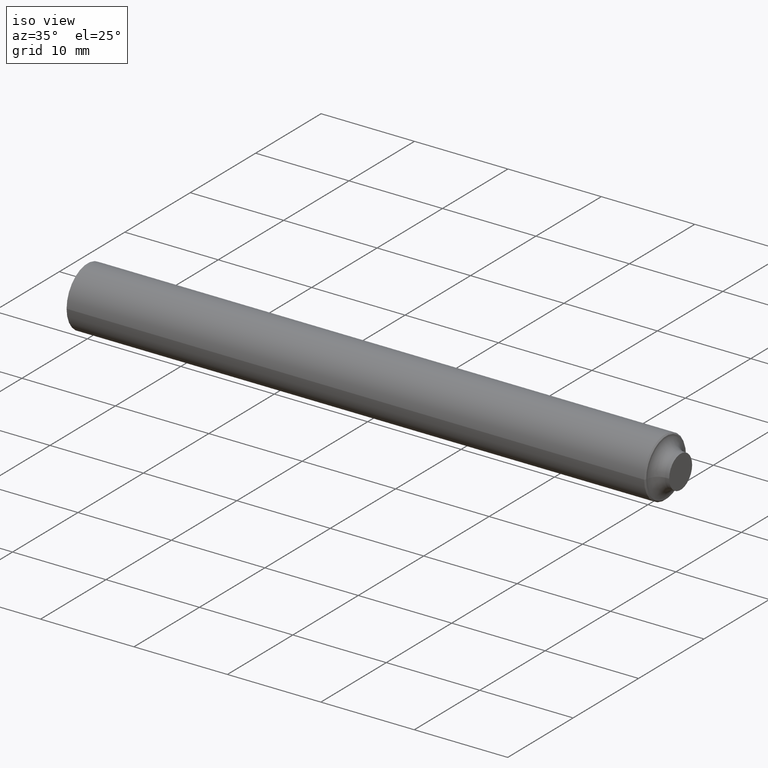
[diagram: clean part render]
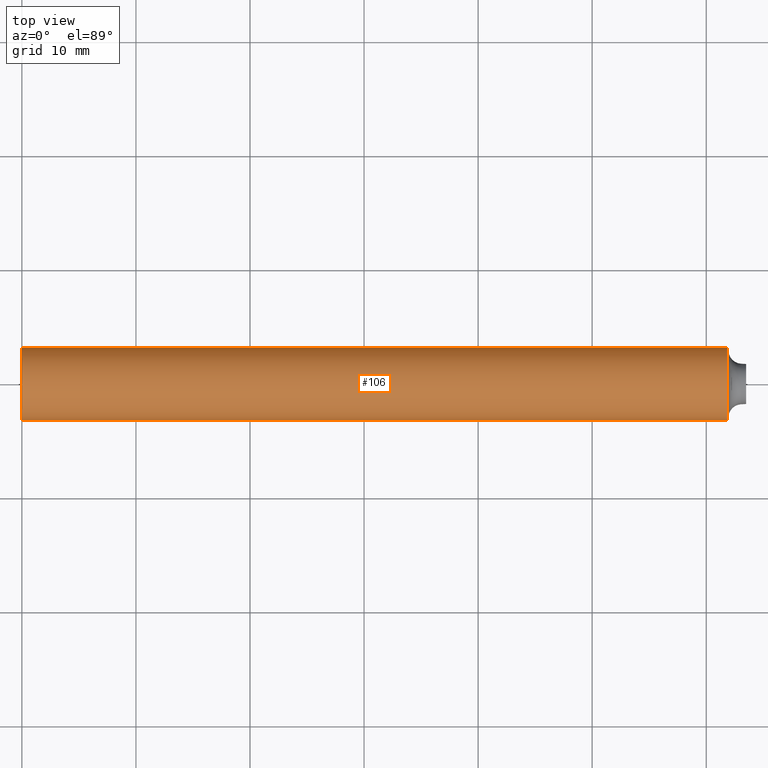
[diagram: tour spotlight — one face highlighted and labeled with its STEP entity id]
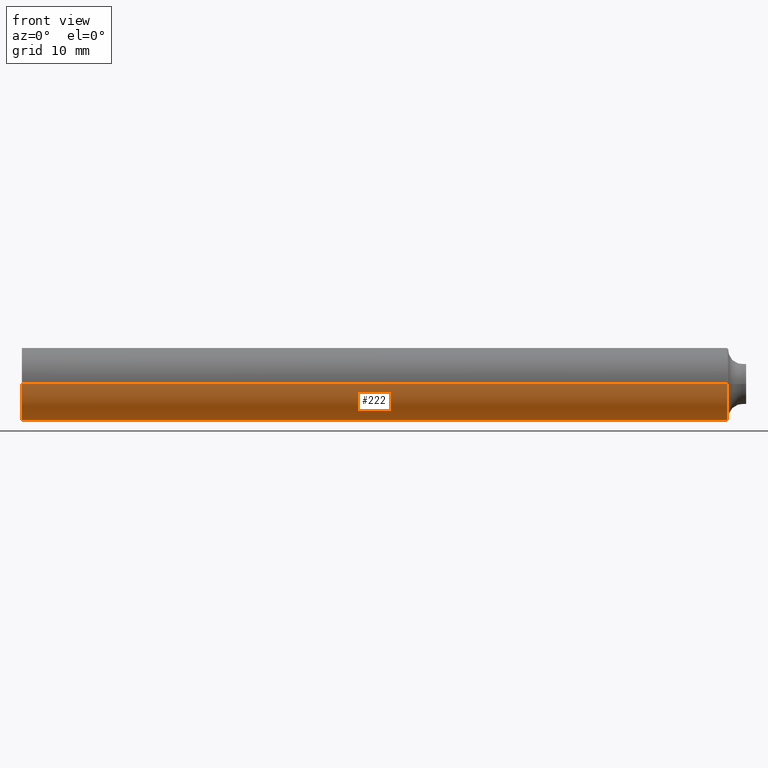
[diagram: tour spotlight — one face highlighted and labeled with its STEP entity id]
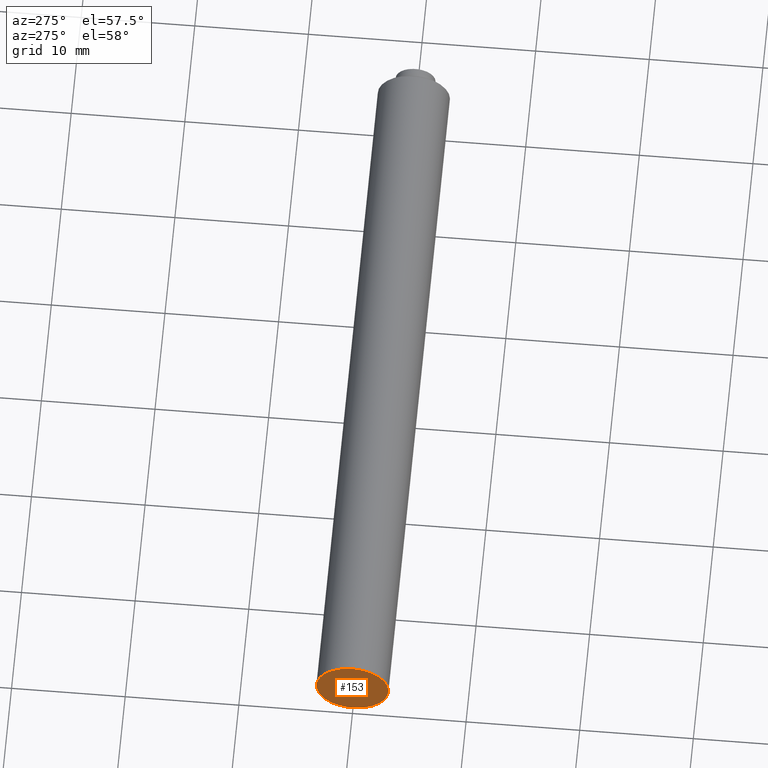
[diagram: tour spotlight — one face highlighted and labeled with its STEP entity id]
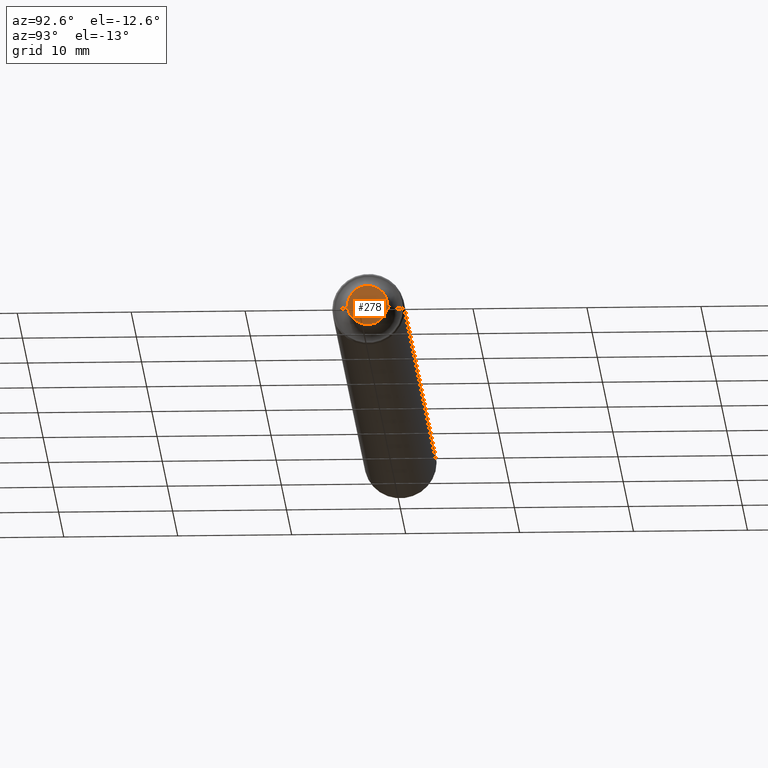
[diagram: tour spotlight — one face highlighted and labeled with its STEP entity id]
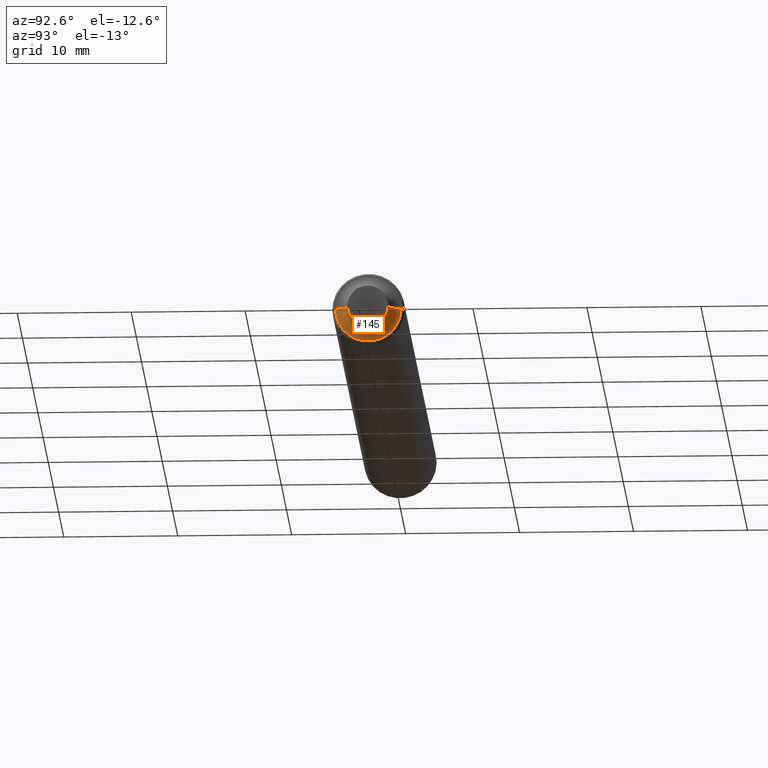
[diagram: tour spotlight — one face highlighted and labeled with its STEP entity id]
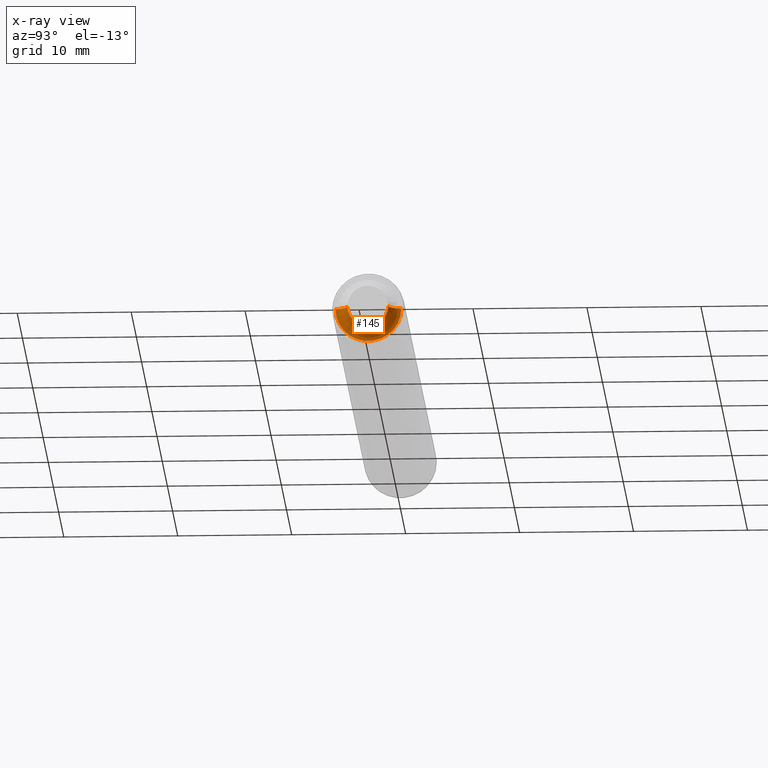
[diagram: x-ray of the same camera — body ghosted, this tour face saturated]
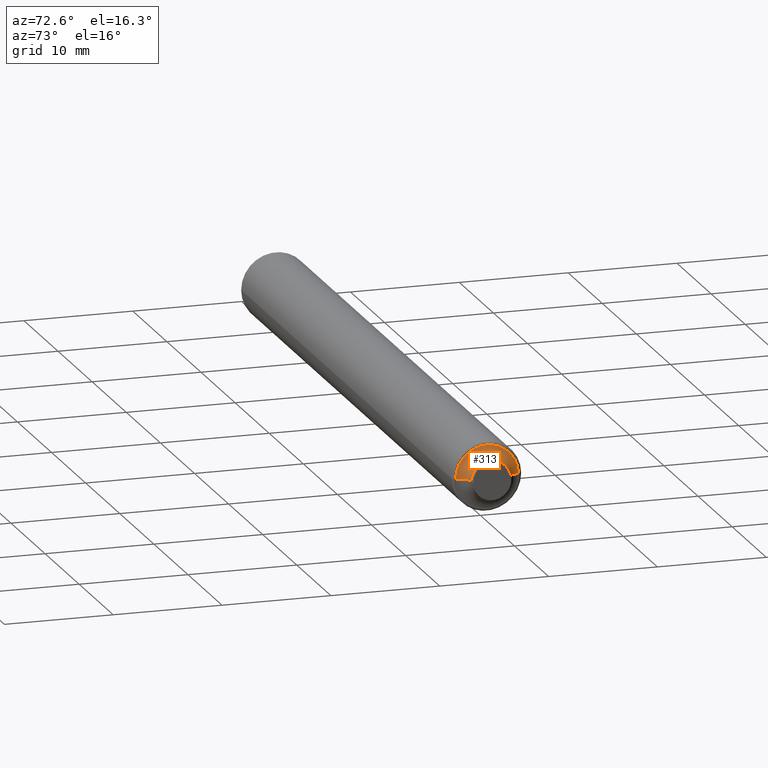
[diagram: tour spotlight — one face highlighted and labeled with its STEP entity id]
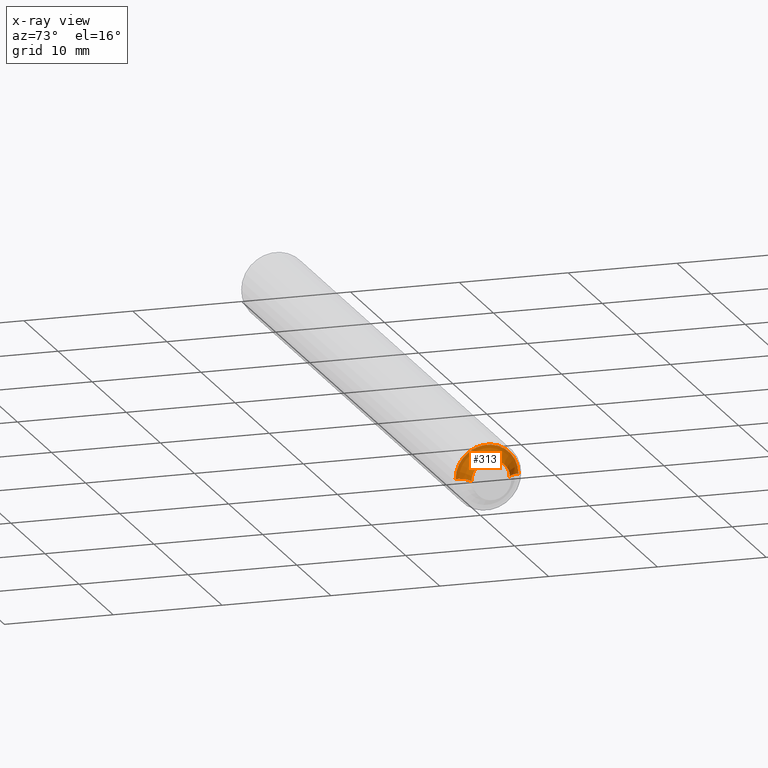
[diagram: x-ray of the same camera — body ghosted, this tour face saturated]
A machine part: a face-by-face anatomy tour. The part has 12 B-rep faces; the first image is the clean iso view, then the 6 largest visible faces are spotlighted one at a time (largest first), each with its STEP entity span.

Face 1 — top view, entity #106. In plain terms, the highlighted cylindrical surface (edge-blend (fillet) strip) has radius 3.175 mm, axis along (-1, -0, -0).
Definition (entity closure, byte-faithful):
#3 = EDGE_CURVE ( 'NONE', #325, #163, #84, .T. ) ;
#4 = DIRECTION ( 'NONE',  ( -1.000000000000000000, -4.887607864318309822E-21, -0.000000000000000000 ) ) ;
#19 = CARTESIAN_POINT ( 'NONE',  ( 2.433660895705829663, -0.1250000000000000000, 0.000000000000000000 ) ) ;
#23 = FACE_OUTER_BOUND ( 'NONE', #223, .T. ) ;
#32 = AXIS2_PLACEMENT_3D ( 'NONE', #45, #146, #250 ) ;
#45 = CARTESIAN_POINT ( 'NONE',  ( 2.433660895705829663, 1.189478013293575589E-20, 0.000000000000000000 ) ) ;
#57 = DIRECTION ( 'NONE',  ( 4.887607864318309822E-21, -1.000000000000000000, 0.000000000000000000 ) ) ;
#84 = CIRCLE ( 'NONE', #32, 0.1250000000000000000 ) ;
#90 = EDGE_CURVE ( 'NONE', #328, #177, #292, .T. ) ;
#105 = DIRECTION ( 'NONE',  ( 4.887607864318309822E-21, -1.000000000000000000, 0.000000000000000000 ) ) ;
#106 = ADVANCED_FACE ( 'NONE', ( #23 ), #134, .T. ) ;
#107 = CARTESIAN_POINT ( 'NONE',  ( 0.000000000000000000, 0.000000000000000000, 0.000000000000000000 ) ) ;
#116 = CARTESIAN_POINT ( 'NONE',  ( 6.109509830397887278E-22, -0.1250000000000000000, 0.000000000000000000 ) ) ;
#120 = CARTESIAN_POINT ( 'NONE',  ( -6.109509830397887278E-22, 0.1250000000000000000, 1.530808498934191509E-17 ) ) ;
#134 = CYLINDRICAL_SURFACE ( 'NONE', #214, 0.1250000000000000000 ) ;
#138 = CARTESIAN_POINT ( 'NONE',  ( 0.000000000000000000, 0.1250000000000000000, 1.530808498934191509E-17 ) ) ;
#142 = LINE ( 'NONE', #120, #160 ) ;
#144 = LINE ( 'NONE', #116, #182 ) ;
#146 = DIRECTION ( 'NONE',  ( -1.000000000000000000, -4.887607864318309822E-21, -0.000000000000000000 ) ) ;
#147 = ORIENTED_EDGE ( 'NONE', *, *, #90, .F. ) ;
#160 = VECTOR ( 'NONE', #4, 39.37007874015748143 ) ;
#163 = VERTEX_POINT ( 'NONE', #165 ) ;
#164 = EDGE_CURVE ( 'NONE', #325, #328, #144, .T. ) ;
#165 = CARTESIAN_POINT ( 'NONE',  ( 2.433660895705829663, 0.1250000000000000000, 1.530808498934191509E-17 ) ) ;
#167 = DIRECTION ( 'NONE',  ( -1.000000000000000000, -4.887607864318309822E-21, -0.000000000000000000 ) ) ;
#177 = VERTEX_POINT ( 'NONE', #138 ) ;
#182 = VECTOR ( 'NONE', #167, 39.37007874015748143 ) ;
#200 = AXIS2_PLACEMENT_3D ( 'NONE', #284, #234, #57 ) ;
#214 = AXIS2_PLACEMENT_3D ( 'NONE', #107, #329, #105 ) ;
#219 = ORIENTED_EDGE ( 'NONE', *, *, #235, .T. ) ;
#223 = EDGE_LOOP ( 'NONE', ( #301, #219, #147, #293 ) ) ;
#234 = DIRECTION ( 'NONE',  ( -1.000000000000000000, -4.887607864318309822E-21, -0.000000000000000000 ) ) ;
#235 = EDGE_CURVE ( 'NONE', #163, #177, #142, .T. ) ;
#250 = DIRECTION ( 'NONE',  ( 0.000000000000000000, -1.000000000000000000, 0.000000000000000000 ) ) ;
#270 = CARTESIAN_POINT ( 'NONE',  ( 1.221901966079577456E-21, -0.1250000000000000000, 0.000000000000000000 ) ) ;
#284 = CARTESIAN_POINT ( 'NONE',  ( 6.109509830397887278E-22, 2.986088829418273701E-42, 0.000000000000000000 ) ) ;
#292 = CIRCLE ( 'NONE', #200, 0.1250000000000000000 ) ;
#293 = ORIENTED_EDGE ( 'NONE', *, *, #164, .F. ) ;
#301 = ORIENTED_EDGE ( 'NONE', *, *, #3, .T. ) ;
#325 = VERTEX_POINT ( 'NONE', #19 ) ;
#328 = VERTEX_POINT ( 'NONE', #270 ) ;
#329 = DIRECTION ( 'NONE',  ( -1.000000000000000000, -4.887607864318309822E-21, -0.000000000000000000 ) ) ;

Face 2 — front view, entity #222. In plain terms, the highlighted cylindrical surface (edge-blend (fillet) strip) has radius 3.175 mm, axis along (-1, -0, -0).
Definition (entity closure, byte-faithful):
#2 = DIRECTION ( 'NONE',  ( -1.000000000000000000, -4.887607864318309822E-21, -0.000000000000000000 ) ) ;
#4 = DIRECTION ( 'NONE',  ( -1.000000000000000000, -4.887607864318309822E-21, -0.000000000000000000 ) ) ;
#6 = DIRECTION ( 'NONE',  ( -1.000000000000000000, -4.887607864318309822E-21, -0.000000000000000000 ) ) ;
#19 = CARTESIAN_POINT ( 'NONE',  ( 2.433660895705829663, -0.1250000000000000000, 0.000000000000000000 ) ) ;
#56 = CIRCLE ( 'NONE', #245, 0.1250000000000000000 ) ;
#60 = DIRECTION ( 'NONE',  ( -1.000000000000000000, -4.887607864318309822E-21, -0.000000000000000000 ) ) ;
#63 = EDGE_LOOP ( 'NONE', ( #204, #95, #197, #323 ) ) ;
#83 = DIRECTION ( 'NONE',  ( 4.887607864318309822E-21, -1.000000000000000000, 0.000000000000000000 ) ) ;
#85 = DIRECTION ( 'NONE',  ( 4.887607864318309822E-21, -1.000000000000000000, 0.000000000000000000 ) ) ;
#95 = ORIENTED_EDGE ( 'NONE', *, *, #295, .T. ) ;
#108 = AXIS2_PLACEMENT_3D ( 'NONE', #137, #2, #162 ) ;
#116 = CARTESIAN_POINT ( 'NONE',  ( 6.109509830397887278E-22, -0.1250000000000000000, 0.000000000000000000 ) ) ;
#120 = CARTESIAN_POINT ( 'NONE',  ( -6.109509830397887278E-22, 0.1250000000000000000, 1.530808498934191509E-17 ) ) ;
#137 = CARTESIAN_POINT ( 'NONE',  ( 2.433660895705829663, 1.189478013293575589E-20, 0.000000000000000000 ) ) ;
#138 = CARTESIAN_POINT ( 'NONE',  ( 0.000000000000000000, 0.1250000000000000000, 1.530808498934191509E-17 ) ) ;
#142 = LINE ( 'NONE', #120, #160 ) ;
#144 = LINE ( 'NONE', #116, #182 ) ;
#160 = VECTOR ( 'NONE', #4, 39.37007874015748143 ) ;
#162 = DIRECTION ( 'NONE',  ( 0.000000000000000000, -1.000000000000000000, 0.000000000000000000 ) ) ;
#163 = VERTEX_POINT ( 'NONE', #165 ) ;
#164 = EDGE_CURVE ( 'NONE', #325, #328, #144, .T. ) ;
#165 = CARTESIAN_POINT ( 'NONE',  ( 2.433660895705829663, 0.1250000000000000000, 1.530808498934191509E-17 ) ) ;
#167 = DIRECTION ( 'NONE',  ( -1.000000000000000000, -4.887607864318309822E-21, -0.000000000000000000 ) ) ;
#177 = VERTEX_POINT ( 'NONE', #138 ) ;
#182 = VECTOR ( 'NONE', #167, 39.37007874015748143 ) ;
#193 = FACE_OUTER_BOUND ( 'NONE', #63, .T. ) ;
#197 = ORIENTED_EDGE ( 'NONE', *, *, #164, .T. ) ;
#201 = CIRCLE ( 'NONE', #108, 0.1250000000000000000 ) ;
#204 = ORIENTED_EDGE ( 'NONE', *, *, #235, .F. ) ;
#212 = CARTESIAN_POINT ( 'NONE',  ( 0.000000000000000000, 0.000000000000000000, 0.000000000000000000 ) ) ;
#222 = ADVANCED_FACE ( 'NONE', ( #193 ), #268, .T. ) ;
#235 = EDGE_CURVE ( 'NONE', #163, #177, #142, .T. ) ;
#237 = CARTESIAN_POINT ( 'NONE',  ( 6.109509830397887278E-22, 2.986088829418273701E-42, 0.000000000000000000 ) ) ;
#242 = EDGE_CURVE ( 'NONE', #177, #328, #56, .T. ) ;
#245 = AXIS2_PLACEMENT_3D ( 'NONE', #237, #6, #83 ) ;
#268 = CYLINDRICAL_SURFACE ( 'NONE', #299, 0.1250000000000000000 ) ;
#270 = CARTESIAN_POINT ( 'NONE',  ( 1.221901966079577456E-21, -0.1250000000000000000, 0.000000000000000000 ) ) ;
#295 = EDGE_CURVE ( 'NONE', #163, #325, #201, .T. ) ;
#299 = AXIS2_PLACEMENT_3D ( 'NONE', #212, #60, #85 ) ;
#323 = ORIENTED_EDGE ( 'NONE', *, *, #242, .F. ) ;
#325 = VERTEX_POINT ( 'NONE', #19 ) ;
#328 = VERTEX_POINT ( 'NONE', #270 ) ;

Face 3 — auxiliary view, entity #153. In plain terms, the highlighted planar face has unit normal (1, 0, 0).
Definition (entity closure, byte-faithful):
#6 = DIRECTION ( 'NONE',  ( -1.000000000000000000, -4.887607864318309822E-21, -0.000000000000000000 ) ) ;
#56 = CIRCLE ( 'NONE', #245, 0.1250000000000000000 ) ;
#57 = DIRECTION ( 'NONE',  ( 4.887607864318309822E-21, -1.000000000000000000, 0.000000000000000000 ) ) ;
#61 = DIRECTION ( 'NONE',  ( 1.000000000000000000, 4.887607864318309822E-21, 0.000000000000000000 ) ) ;
#83 = DIRECTION ( 'NONE',  ( 4.887607864318309822E-21, -1.000000000000000000, 0.000000000000000000 ) ) ;
#90 = EDGE_CURVE ( 'NONE', #328, #177, #292, .T. ) ;
#113 = ORIENTED_EDGE ( 'NONE', *, *, #242, .T. ) ;
#115 = ORIENTED_EDGE ( 'NONE', *, *, #90, .T. ) ;
#138 = CARTESIAN_POINT ( 'NONE',  ( 0.000000000000000000, 0.1250000000000000000, 1.530808498934191509E-17 ) ) ;
#143 = AXIS2_PLACEMENT_3D ( 'NONE', #187, #61, #243 ) ;
#153 = ADVANCED_FACE ( 'NONE', ( #291 ), #318, .F. ) ;
#177 = VERTEX_POINT ( 'NONE', #138 ) ;
#187 = CARTESIAN_POINT ( 'NONE',  ( 3.054754915198943639E-22, 1.493044414709136851E-42, 0.000000000000000000 ) ) ;
#200 = AXIS2_PLACEMENT_3D ( 'NONE', #284, #234, #57 ) ;
#234 = DIRECTION ( 'NONE',  ( -1.000000000000000000, -4.887607864318309822E-21, -0.000000000000000000 ) ) ;
#237 = CARTESIAN_POINT ( 'NONE',  ( 6.109509830397887278E-22, 2.986088829418273701E-42, 0.000000000000000000 ) ) ;
#242 = EDGE_CURVE ( 'NONE', #177, #328, #56, .T. ) ;
#243 = DIRECTION ( 'NONE',  ( -4.887607864318309822E-21, 1.000000000000000000, 0.000000000000000000 ) ) ;
#245 = AXIS2_PLACEMENT_3D ( 'NONE', #237, #6, #83 ) ;
#270 = CARTESIAN_POINT ( 'NONE',  ( 1.221901966079577456E-21, -0.1250000000000000000, 0.000000000000000000 ) ) ;
#284 = CARTESIAN_POINT ( 'NONE',  ( 6.109509830397887278E-22, 2.986088829418273701E-42, 0.000000000000000000 ) ) ;
#289 = EDGE_LOOP ( 'NONE', ( #115, #113 ) ) ;
#291 = FACE_OUTER_BOUND ( 'NONE', #289, .T. ) ;
#292 = CIRCLE ( 'NONE', #200, 0.1250000000000000000 ) ;
#318 = PLANE ( 'NONE',  #143 ) ;
#328 = VERTEX_POINT ( 'NONE', #270 ) ;

Face 4 — auxiliary view, entity #278. In plain terms, the highlighted planar face has unit normal (-1, -0, 0).
Definition (entity closure, byte-faithful):
#20 = CARTESIAN_POINT ( 'NONE',  ( 2.500000000000000000, 1.221901966079577606E-20, 0.000000000000000000 ) ) ;
#22 = EDGE_CURVE ( 'NONE', #324, #172, #259, .T. ) ;
#47 = ORIENTED_EDGE ( 'NONE', *, *, #22, .F. ) ;
#48 = DIRECTION ( 'NONE',  ( 0.000000000000000000, -1.000000000000000000, 0.000000000000000000 ) ) ;
#49 = AXIS2_PLACEMENT_3D ( 'NONE', #180, #183, #136 ) ;
#64 = EDGE_CURVE ( 'NONE', #172, #324, #98, .T. ) ;
#81 = FACE_OUTER_BOUND ( 'NONE', #139, .T. ) ;
#87 = DIRECTION ( 'NONE',  ( 4.887607864318309822E-21, -1.000000000000000000, 0.000000000000000000 ) ) ;
#98 = CIRCLE ( 'NONE', #49, 0.06908441013371593997 ) ;
#101 = AXIS2_PLACEMENT_3D ( 'NONE', #20, #275, #48 ) ;
#102 = CARTESIAN_POINT ( 'NONE',  ( 2.500000000000000000, 0.06908441013371593997, 8.516463884077649517E-18 ) ) ;
#136 = DIRECTION ( 'NONE',  ( 0.000000000000000000, -1.000000000000000000, 0.000000000000000000 ) ) ;
#139 = EDGE_LOOP ( 'NONE', ( #141, #47 ) ) ;
#141 = ORIENTED_EDGE ( 'NONE', *, *, #64, .F. ) ;
#161 = CARTESIAN_POINT ( 'NONE',  ( 2.500000000000000000, 0.06908441013371593997, 0.000000000000000000 ) ) ;
#172 = VERTEX_POINT ( 'NONE', #287 ) ;
#180 = CARTESIAN_POINT ( 'NONE',  ( 2.500000000000000000, 1.221901966079577606E-20, 0.000000000000000000 ) ) ;
#183 = DIRECTION ( 'NONE',  ( -1.000000000000000000, -4.887607864318309822E-21, -0.000000000000000000 ) ) ;
#192 = PLANE ( 'NONE',  #327 ) ;
#259 = CIRCLE ( 'NONE', #101, 0.06908441013371593997 ) ;
#275 = DIRECTION ( 'NONE',  ( -1.000000000000000000, -4.887607864318309822E-21, -0.000000000000000000 ) ) ;
#278 = ADVANCED_FACE ( 'NONE', ( #81 ), #192, .F. ) ;
#287 = CARTESIAN_POINT ( 'NONE',  ( 2.500000000000000000, -0.06908441013371593997, 0.000000000000000000 ) ) ;
#317 = DIRECTION ( 'NONE',  ( -1.000000000000000000, -4.887607864318309822E-21, 0.000000000000000000 ) ) ;
#324 = VERTEX_POINT ( 'NONE', #102 ) ;
#327 = AXIS2_PLACEMENT_3D ( 'NONE', #161, #317, #87 ) ;

Face 5 — auxiliary view, entity #145. An x-ray twin of the same camera follows (body ghosted, this face saturated) — the face is partly hidden behind the body. In plain terms, the highlighted toroidal blend (fillet) surface has major radius 2.9448 mm and minor (blend) radius 1.1684 mm.
Definition (entity closure, byte-faithful):
#5 = DIRECTION ( 'NONE',  ( 0.000000000000000000, -1.000000000000000000, 0.000000000000000000 ) ) ;
#8 = EDGE_CURVE ( 'NONE', #266, #131, #232, .T. ) ;
#25 = CARTESIAN_POINT ( 'NONE',  ( 2.482529504611534765, 0.07000000000000006217, 8.572527594031479661E-18 ) ) ;
#26 = AXIS2_PLACEMENT_3D ( 'NONE', #168, #33, #5 ) ;
#33 = DIRECTION ( 'NONE',  ( -1.000000000000000000, -4.887607864318309822E-21, -0.000000000000000000 ) ) ;
#43 = CARTESIAN_POINT ( 'NONE',  ( 2.484936958598710444, 0.1159369585987104073, 1.419818252507899033E-17 ) ) ;
#73 = VERTEX_POINT ( 'NONE', #25 ) ;
#82 = VERTEX_POINT ( 'NONE', #133 ) ;
#112 = CARTESIAN_POINT ( 'NONE',  ( 2.484936958598710444, 0.000000000000000000, 0.000000000000000000 ) ) ;
#119 = CARTESIAN_POINT ( 'NONE',  ( 2.439000000000000057, 0.1135295046115346596, 1.390335444313005994E-17 ) ) ;
#130 = TOROIDAL_SURFACE ( 'NONE', #173, 0.1159369585987104073, 0.04599999999999998535 ) ;
#131 = VERTEX_POINT ( 'NONE', #207 ) ;
#133 = CARTESIAN_POINT ( 'NONE',  ( 2.482529504611534765, -0.07000000000000006217, 0.000000000000000000 ) ) ;
#135 = CIRCLE ( 'NONE', #26, 0.07000000000000006217 ) ;
#145 = ADVANCED_FACE ( 'NONE', ( #264 ), #130, .F. ) ;
#149 = DIRECTION ( 'NONE',  ( -1.000000000000000000, -4.887607864318309822E-21, -0.000000000000000000 ) ) ;
#159 = AXIS2_PLACEMENT_3D ( 'NONE', #43, #296, #225 ) ;
#168 = CARTESIAN_POINT ( 'NONE',  ( 2.482529504611534765, 1.213363073014157413E-20, 0.000000000000000000 ) ) ;
#173 = AXIS2_PLACEMENT_3D ( 'NONE', #112, #217, #312 ) ;
#179 = EDGE_CURVE ( 'NONE', #73, #82, #135, .T. ) ;
#188 = AXIS2_PLACEMENT_3D ( 'NONE', #199, #149, #255 ) ;
#189 = CIRCLE ( 'NONE', #244, 0.04599999999999999922 ) ;
#199 = CARTESIAN_POINT ( 'NONE',  ( 2.439000000000000057, 1.192087558107235888E-20, 0.000000000000000000 ) ) ;
#207 = CARTESIAN_POINT ( 'NONE',  ( 2.439000000000000057, -0.1135295046115346596, 0.000000000000000000 ) ) ;
#211 = EDGE_LOOP ( 'NONE', ( #271, #274, #252, #224 ) ) ;
#217 = DIRECTION ( 'NONE',  ( -1.000000000000000000, -4.887607864318309822E-21, -0.000000000000000000 ) ) ;
#224 = ORIENTED_EDGE ( 'NONE', *, *, #306, .F. ) ;
#225 = DIRECTION ( 'NONE',  ( 0.000000000000000000, -1.000000000000000000, -1.224646799147352961E-16 ) ) ;
#232 = CIRCLE ( 'NONE', #188, 0.1135295046115351730 ) ;
#244 = AXIS2_PLACEMENT_3D ( 'NONE', #247, #322, #319 ) ;
#247 = CARTESIAN_POINT ( 'NONE',  ( 2.484936958598710444, -0.1159369585987104073, 0.000000000000000000 ) ) ;
#252 = ORIENTED_EDGE ( 'NONE', *, *, #179, .T. ) ;
#255 = DIRECTION ( 'NONE',  ( 0.000000000000000000, -1.000000000000000000, 0.000000000000000000 ) ) ;
#264 = FACE_OUTER_BOUND ( 'NONE', #211, .T. ) ;
#266 = VERTEX_POINT ( 'NONE', #119 ) ;
#271 = ORIENTED_EDGE ( 'NONE', *, *, #8, .F. ) ;
#274 = ORIENTED_EDGE ( 'NONE', *, *, #303, .T. ) ;
#282 = CIRCLE ( 'NONE', #159, 0.04599999999999998535 ) ;
#296 = DIRECTION ( 'NONE',  ( 5.985593326524849363E-37, -1.224646799147353207E-16, 1.000000000000000000 ) ) ;
#303 = EDGE_CURVE ( 'NONE', #266, #73, #282, .T. ) ;
#306 = EDGE_CURVE ( 'NONE', #131, #82, #189, .T. ) ;
#312 = DIRECTION ( 'NONE',  ( 4.887607864318309822E-21, -1.000000000000000000, 0.000000000000000000 ) ) ;
#319 = DIRECTION ( 'NONE',  ( -1.000000000000000000, 0.000000000000000000, 0.000000000000000000 ) ) ;
#322 = DIRECTION ( 'NONE',  ( 0.000000000000000000, 0.000000000000000000, -1.000000000000000000 ) ) ;

Face 6 — auxiliary view, entity #313. An x-ray twin of the same camera follows (body ghosted, this face saturated) — the face is partly hidden behind the body. In plain terms, the highlighted toroidal blend (fillet) surface has major radius 2.9448 mm and minor (blend) radius 1.1684 mm.
Definition (entity closure, byte-faithful):
#10 = DIRECTION ( 'NONE',  ( 0.000000000000000000, -1.000000000000000000, 0.000000000000000000 ) ) ;
#25 = CARTESIAN_POINT ( 'NONE',  ( 2.482529504611534765, 0.07000000000000006217, 8.572527594031479661E-18 ) ) ;
#31 = EDGE_CURVE ( 'NONE', #82, #73, #79, .T. ) ;
#40 = DIRECTION ( 'NONE',  ( -1.000000000000000000, -4.887607864318309822E-21, -0.000000000000000000 ) ) ;
#43 = CARTESIAN_POINT ( 'NONE',  ( 2.484936958598710444, 0.1159369585987104073, 1.419818252507899033E-17 ) ) ;
#66 = FACE_OUTER_BOUND ( 'NONE', #103, .T. ) ;
#73 = VERTEX_POINT ( 'NONE', #25 ) ;
#79 = CIRCLE ( 'NONE', #320, 0.07000000000000006217 ) ;
#82 = VERTEX_POINT ( 'NONE', #133 ) ;
#91 = AXIS2_PLACEMENT_3D ( 'NONE', #97, #40, #10 ) ;
#97 = CARTESIAN_POINT ( 'NONE',  ( 2.439000000000000057, 1.192087558107235888E-20, 0.000000000000000000 ) ) ;
#103 = EDGE_LOOP ( 'NONE', ( #248, #316, #195, #273 ) ) ;
#109 = DIRECTION ( 'NONE',  ( -1.000000000000000000, -4.887607864318309822E-21, -0.000000000000000000 ) ) ;
#119 = CARTESIAN_POINT ( 'NONE',  ( 2.439000000000000057, 0.1135295046115346596, 1.390335444313005994E-17 ) ) ;
#123 = CARTESIAN_POINT ( 'NONE',  ( 2.484936958598710444, 0.000000000000000000, 0.000000000000000000 ) ) ;
#124 = TOROIDAL_SURFACE ( 'NONE', #215, 0.1159369585987104073, 0.04599999999999998535 ) ;
#131 = VERTEX_POINT ( 'NONE', #207 ) ;
#133 = CARTESIAN_POINT ( 'NONE',  ( 2.482529504611534765, -0.07000000000000006217, 0.000000000000000000 ) ) ;
#152 = CARTESIAN_POINT ( 'NONE',  ( 2.482529504611534765, 1.213363073014157413E-20, 0.000000000000000000 ) ) ;
#159 = AXIS2_PLACEMENT_3D ( 'NONE', #43, #296, #225 ) ;
#189 = CIRCLE ( 'NONE', #244, 0.04599999999999999922 ) ;
#195 = ORIENTED_EDGE ( 'NONE', *, *, #306, .T. ) ;
#207 = CARTESIAN_POINT ( 'NONE',  ( 2.439000000000000057, -0.1135295046115346596, 0.000000000000000000 ) ) ;
#215 = AXIS2_PLACEMENT_3D ( 'NONE', #123, #254, #218 ) ;
#218 = DIRECTION ( 'NONE',  ( 4.887607864318309822E-21, -1.000000000000000000, 0.000000000000000000 ) ) ;
#225 = DIRECTION ( 'NONE',  ( 0.000000000000000000, -1.000000000000000000, -1.224646799147352961E-16 ) ) ;
#239 = CIRCLE ( 'NONE', #91, 0.1135295046115351730 ) ;
#244 = AXIS2_PLACEMENT_3D ( 'NONE', #247, #322, #319 ) ;
#247 = CARTESIAN_POINT ( 'NONE',  ( 2.484936958598710444, -0.1159369585987104073, 0.000000000000000000 ) ) ;
#248 = ORIENTED_EDGE ( 'NONE', *, *, #303, .F. ) ;
#254 = DIRECTION ( 'NONE',  ( -1.000000000000000000, -4.887607864318309822E-21, -0.000000000000000000 ) ) ;
#266 = VERTEX_POINT ( 'NONE', #119 ) ;
#273 = ORIENTED_EDGE ( 'NONE', *, *, #31, .T. ) ;
#282 = CIRCLE ( 'NONE', #159, 0.04599999999999998535 ) ;
#296 = DIRECTION ( 'NONE',  ( 5.985593326524849363E-37, -1.224646799147353207E-16, 1.000000000000000000 ) ) ;
#303 = EDGE_CURVE ( 'NONE', #266, #73, #282, .T. ) ;
#304 = DIRECTION ( 'NONE',  ( 0.000000000000000000, -1.000000000000000000, 0.000000000000000000 ) ) ;
#306 = EDGE_CURVE ( 'NONE', #131, #82, #189, .T. ) ;
#313 = ADVANCED_FACE ( 'NONE', ( #66 ), #124, .F. ) ;
#316 = ORIENTED_EDGE ( 'NONE', *, *, #333, .F. ) ;
#319 = DIRECTION ( 'NONE',  ( -1.000000000000000000, 0.000000000000000000, 0.000000000000000000 ) ) ;
#320 = AXIS2_PLACEMENT_3D ( 'NONE', #152, #109, #304 ) ;
#322 = DIRECTION ( 'NONE',  ( 0.000000000000000000, 0.000000000000000000, -1.000000000000000000 ) ) ;
#333 = EDGE_CURVE ( 'NONE', #131, #266, #239, .T. ) ;